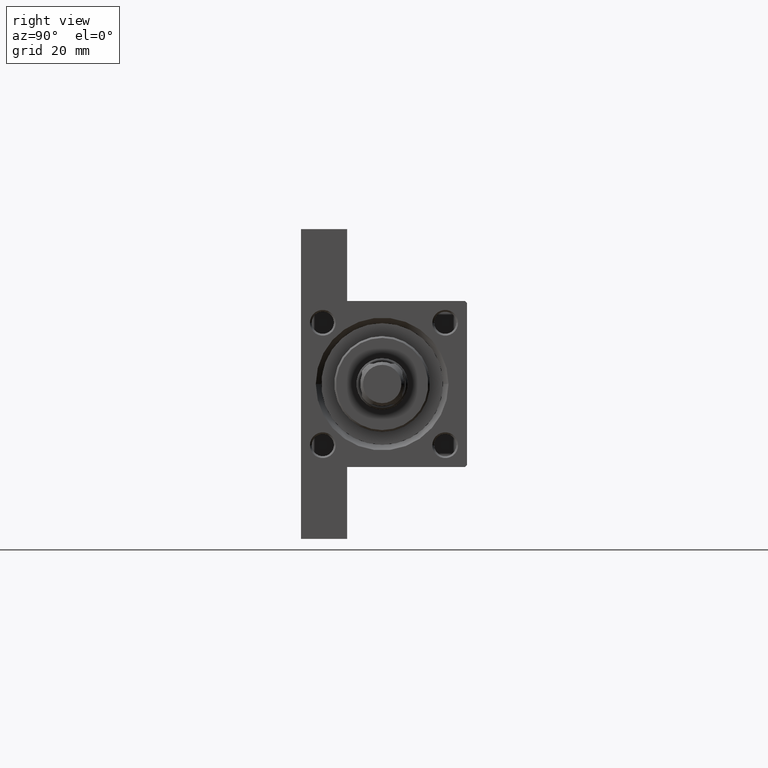
[diagram: clean part render]
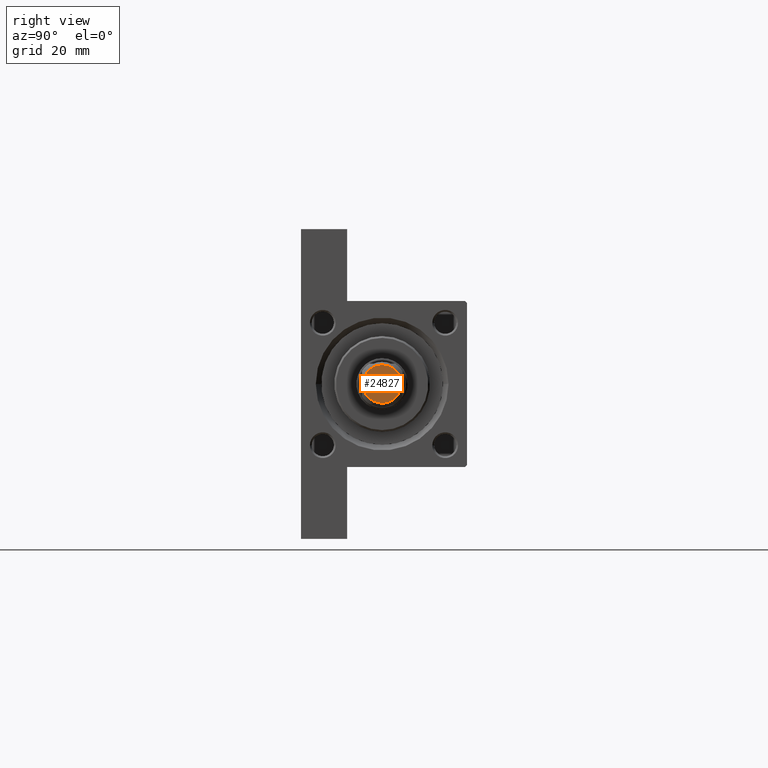
[diagram: same view with one face highlighted and labeled with its STEP entity id]
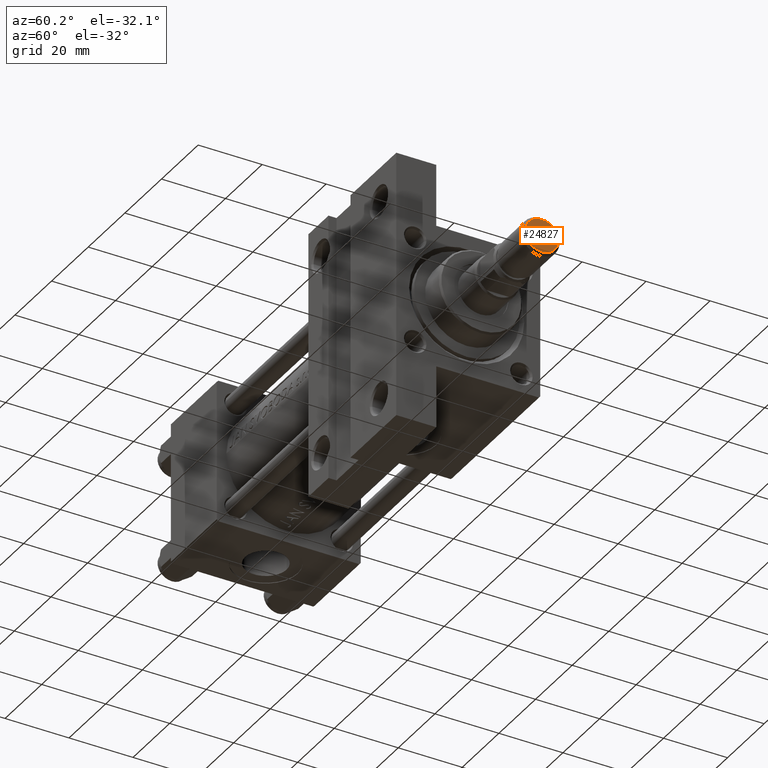
[diagram: same view with one face highlighted and labeled with its STEP entity id]
A machine part, right view. The second image highlights one B-rep face of the part: STEP entity #24827.
A second angle (auxiliary view) of the same face is appended — the face is thin or edge-on in the first view.
In plain terms, the highlighted planar face has unit normal (-1, 0, 0).
Its self-contained STEP definition (entity closure, byte-faithful):
#59 = DIRECTION ( 'NONE',  ( -0.000000000000000000, -0.000000000000000000, -1.000000000000000000 ) ) ;
#2306 = CARTESIAN_POINT ( 'NONE',  ( 5.199999999999992184, 0.000000000000000000, 0.000000000000000000 ) ) ;
#3496 = DIRECTION ( 'NONE',  ( 1.000000000000000000, 0.000000000000000000, 0.000000000000000000 ) ) ;
#6446 = DIRECTION ( 'NONE',  ( 1.000000000000000000, 0.000000000000000000, -0.000000000000000000 ) ) ;
#7428 = EDGE_CURVE ( 'NONE', #10525, #41957, #10961, .T. ) ;
#7570 = ORIENTED_EDGE ( 'NONE', *, *, #37619, .T. ) ;
#10525 = VERTEX_POINT ( 'NONE', #2306 ) ;
#10552 = CARTESIAN_POINT ( 'NONE',  ( 0.000000000000000000, 0.000000000000000000, 0.000000000000000000 ) ) ;
#10961 = CIRCLE ( 'NONE', #24989, 5.199999999999992184 ) ;
#13746 = FACE_OUTER_BOUND ( 'NONE', #29679, .T. ) ;
#14425 = AXIS2_PLACEMENT_3D ( 'NONE', #10552, #59, #3496 ) ;
#16124 = CARTESIAN_POINT ( 'NONE',  ( -5.199999999999992184, 6.858022075225173621E-16, 0.000000000000000000 ) ) ;
#20686 = CIRCLE ( 'NONE', #14425, 5.199999999999992184 ) ;
#24728 = CARTESIAN_POINT ( 'NONE',  ( 0.000000000000000000, 0.000000000000000000, 0.000000000000000000 ) ) ;
#24827 = ADVANCED_FACE ( 'NONE', ( #13746 ), #39599, .F. ) ;
#24989 = AXIS2_PLACEMENT_3D ( 'NONE', #35435, #38843, #39090 ) ;
#29679 = EDGE_LOOP ( 'NONE', ( #44517, #7570 ) ) ;
#32267 = DIRECTION ( 'NONE',  ( 0.000000000000000000, 0.000000000000000000, 1.000000000000000000 ) ) ;
#35435 = CARTESIAN_POINT ( 'NONE',  ( 0.000000000000000000, 0.000000000000000000, 0.000000000000000000 ) ) ;
#37619 = EDGE_CURVE ( 'NONE', #41957, #10525, #20686, .T. ) ;
#38843 = DIRECTION ( 'NONE',  ( -0.000000000000000000, -0.000000000000000000, -1.000000000000000000 ) ) ;
#39090 = DIRECTION ( 'NONE',  ( 1.000000000000000000, 0.000000000000000000, 0.000000000000000000 ) ) ;
#39599 = PLANE ( 'NONE',  #40660 ) ;
#40660 = AXIS2_PLACEMENT_3D ( 'NONE', #24728, #32267, #6446 ) ;
#41957 = VERTEX_POINT ( 'NONE', #16124 ) ;
#44517 = ORIENTED_EDGE ( 'NONE', *, *, #7428, .T. ) ;